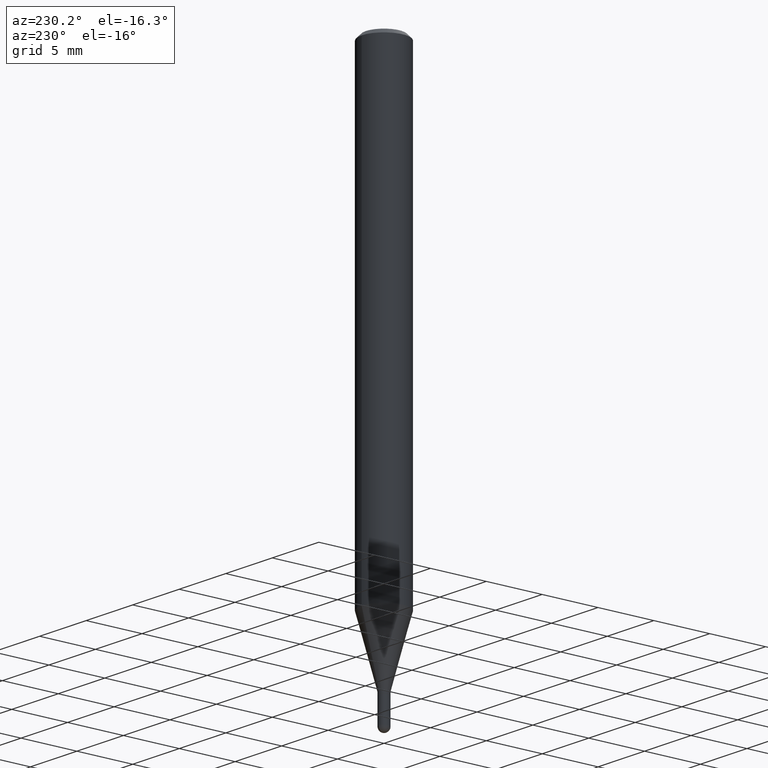
[diagram: clean part render]
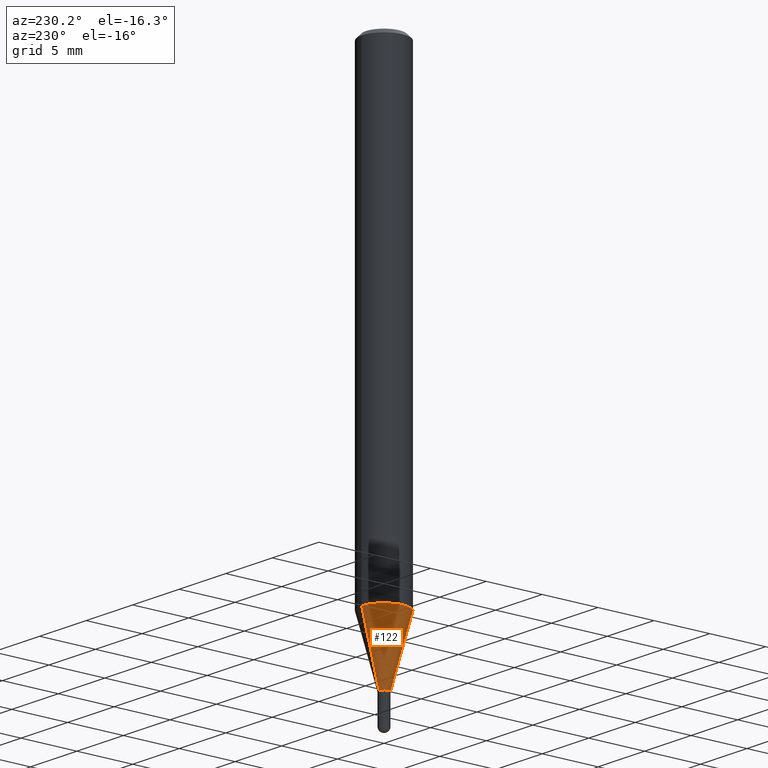
[diagram: same view with one face highlighted and labeled with its STEP entity id]
A machine part, auxiliary view. The second image highlights one B-rep face of the part: STEP entity #122.
In plain terms, the highlighted conical surface has half-angle 15 deg.
Its self-contained STEP definition (entity closure, byte-faithful):
#15 = ORIENTED_EDGE ( 'NONE', *, *, #269, .F. ) ;
#22 = VERTEX_POINT ( 'NONE', #145 ) ;
#45 = DIRECTION ( 'NONE',  ( -6.982962677686266711E-15, -1.000000000000000000, 0.000000000000000000 ) ) ;
#57 = VERTEX_POINT ( 'NONE', #344 ) ;
#83 = CARTESIAN_POINT ( 'NONE',  ( 4.530193599732417760E-29, -6.468022687188522652E-15, -1.852500000000000036 ) ) ;
#99 = CARTESIAN_POINT ( 'NONE',  ( 3.426592343203496595E-16, 0.01769999999999318646, -1.852500000000000036 ) ) ;
#122 = ADVANCED_FACE ( 'NONE', ( #475 ), #134, .T. ) ;
#134 = CONICAL_SURFACE ( 'NONE', #461, 0.01769999999999965351, 0.2617993877991502960 ) ;
#145 = CARTESIAN_POINT ( 'NONE',  ( -5.499083108677538040E-16, -0.07875000000000566269, -1.624658298197919404 ) ) ;
#153 = CIRCLE ( 'NONE', #425, 0.01769999999999965351 ) ;
#156 = VERTEX_POINT ( 'NONE', #160 ) ;
#160 = CARTESIAN_POINT ( 'NONE',  ( 5.595524044111181461E-16, 0.07874999999999431066, -1.624658298197919848 ) ) ;
#178 = EDGE_LOOP ( 'NONE', ( #15, #338, #454, #308 ) ) ;
#207 = CIRCLE ( 'NONE', #372, 0.07875000000000000056 ) ;
#231 = DIRECTION ( 'NONE',  ( -2.445448636832614315E-29, 3.491510222503925933E-15, 1.000000000000000000 ) ) ;
#246 = EDGE_CURVE ( 'NONE', #432, #57, #153, .T. ) ;
#254 = CARTESIAN_POINT ( 'NONE',  ( -1.235984393949991886E-16, -0.01770000000000612403, -1.852500000000000036 ) ) ;
#263 = DIRECTION ( 'NONE',  ( -6.982962677686264344E-15, -1.000000000000000000, 3.469013325287953293E-15 ) ) ;
#266 = CARTESIAN_POINT ( 'NONE',  ( 4.530193599732417760E-29, -6.468022687188522652E-15, -1.852500000000000036 ) ) ;
#269 = EDGE_CURVE ( 'NONE', #432, #156, #295, .T. ) ;
#291 = LINE ( 'NONE', #254, #452 ) ;
#295 = LINE ( 'NONE', #495, #493 ) ;
#308 = ORIENTED_EDGE ( 'NONE', *, *, #471, .F. ) ;
#310 = DIRECTION ( 'NONE',  ( -2.445448636832614315E-29, 3.491510222503925933E-15, 1.000000000000000000 ) ) ;
#338 = ORIENTED_EDGE ( 'NONE', *, *, #246, .T. ) ;
#344 = CARTESIAN_POINT ( 'NONE',  ( -1.235984393949991886E-16, -0.01770000000000612403, -1.852500000000000036 ) ) ;
#372 = AXIS2_PLACEMENT_3D ( 'NONE', #423, #384, #263 ) ;
#384 = DIRECTION ( 'NONE',  ( -2.445448636832614315E-29, 3.491510222503925933E-15, 1.000000000000000000 ) ) ;
#395 = DIRECTION ( 'NONE',  ( -1.807323732225330928E-15, -0.2588190451025182970, 0.9659258262890689783 ) ) ;
#403 = DIRECTION ( 'NONE',  ( -6.982962677686266711E-15, -1.000000000000000000, 0.000000000000000000 ) ) ;
#423 = CARTESIAN_POINT ( 'NONE',  ( 3.973018420646897209E-29, -5.672511056233867752E-15, -1.624658298197919626 ) ) ;
#425 = AXIS2_PLACEMENT_3D ( 'NONE', #83, #231, #403 ) ;
#432 = VERTEX_POINT ( 'NONE', #99 ) ;
#452 = VECTOR ( 'NONE', #395, 39.37007874015748143 ) ;
#454 = ORIENTED_EDGE ( 'NONE', *, *, #467, .T. ) ;
#455 = DIRECTION ( 'NONE',  ( 1.839019923739601104E-15, 0.2588190451025250693, 0.9659258262890670910 ) ) ;
#461 = AXIS2_PLACEMENT_3D ( 'NONE', #266, #310, #45 ) ;
#467 = EDGE_CURVE ( 'NONE', #57, #22, #291, .T. ) ;
#471 = EDGE_CURVE ( 'NONE', #156, #22, #207, .T. ) ;
#475 = FACE_OUTER_BOUND ( 'NONE', #178, .T. ) ;
#493 = VECTOR ( 'NONE', #455, 39.37007874015748143 ) ;
#495 = CARTESIAN_POINT ( 'NONE',  ( 1.257660642295805565E-16, 0.01769999999999318646, -1.852500000000000036 ) ) ;